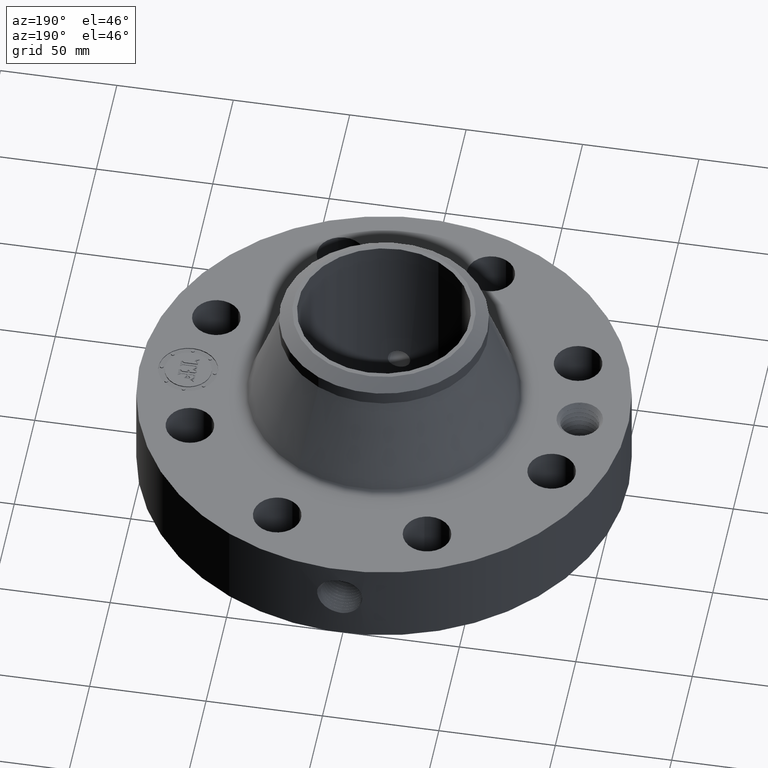
[diagram: clean part render]
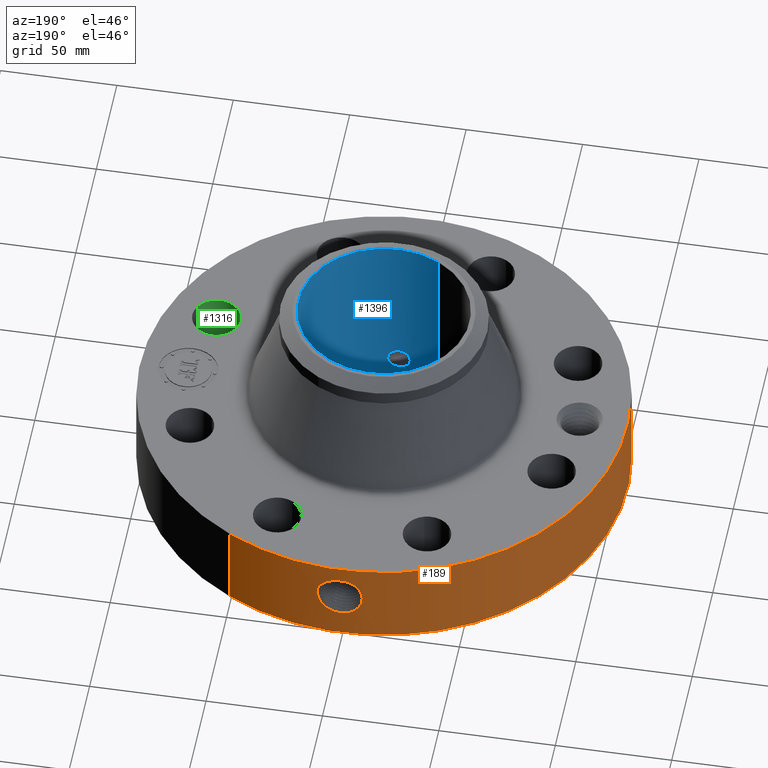
[diagram: same view with three faces highlighted in distinct colors, each labeled with its STEP entity id]
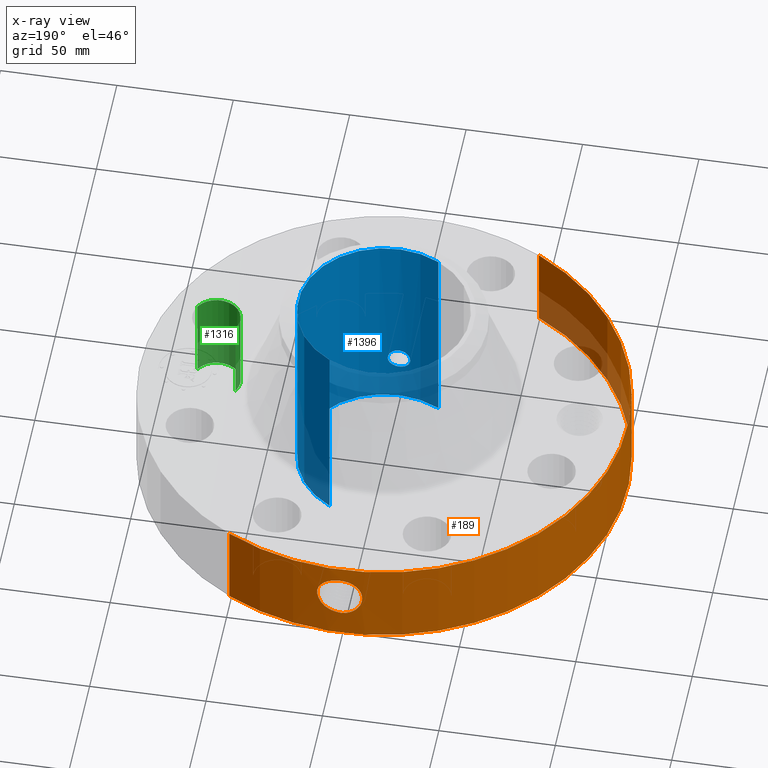
[diagram: x-ray of the same camera — body ghosted, the three highlighted faces saturated]
A machine part, auxiliary view with three faces highlighted in distinct colors.
The next image is the same camera in x-ray (body ghosted, the three faces saturated) — at least one of them is partly hidden behind the body in this view.
Their STEP definitions:

[orange] entity #189 — the highlighted cylindrical surface (partial cylindrical patch) has radius 104.775 mm, axis along (0, 0, -1).
#38=AXIS2_PLACEMENT_3D('Cylinder Axis2P3D',#35,#36,#37) ;
#42=AXIS2_PLACEMENT_3D('Circle Axis2P3D',#40,#41,$) ;
#58=AXIS2_PLACEMENT_3D('Circle Axis2P3D',#56,#57,$) ;
#35=CARTESIAN_POINT('Axis2P3D Location',(0.,0.,1.81000000001)) ;
#40=CARTESIAN_POINT('Axis2P3D Location',(0.,0.,0.0600000000002)) ;
#44=CARTESIAN_POINT('Vertex',(-1.97763034675,-3.62002806781,0.0600000000002)) ;
#46=CARTESIAN_POINT('Vertex',(1.97763034675,3.62002806781,0.0600000000002)) ;
#49=CARTESIAN_POINT('Line Origine',(-1.97763034675,-3.62002806781,0.810000000003)) ;
#53=CARTESIAN_POINT('Vertex',(-1.97763034675,-3.62002806781,1.56000000001)) ;
#56=CARTESIAN_POINT('Axis2P3D Location',(0.,0.,1.56000000001)) ;
#60=CARTESIAN_POINT('Vertex',(1.97763034675,3.62002806781,1.56000000001)) ;
#63=CARTESIAN_POINT('Line Origine',(1.97763034675,3.62002806781,0.810000000003)) ;
#75=CARTESIAN_POINT('Control Point',(-0.0708258696636,4.12439191837,1.28694445408)) ;
#76=CARTESIAN_POINT('Control Point',(-0.0477756042701,4.12478774765,1.29166264764)) ;
#77=CARTESIAN_POINT('Control Point',(-0.0242493397509,4.12499584526,1.29407066085)) ;
#78=CARTESIAN_POINT('Control Point',(-0.000717367785608,4.12499993764,1.29411849621)) ;
#79=CARTESIAN_POINT('Vertex',(-0.0707931255285,4.12439274845,1.28695147494)) ;
#81=CARTESIAN_POINT('Vertex',(-0.000717115675859,4.12499993768,1.29411850626)) ;
#85=CARTESIAN_POINT('Control Point',(-0.0707929875436,4.12439248291,1.28695080973)) ;
#86=CARTESIAN_POINT('Control Point',(-0.105534403893,4.12379616511,1.28076532583)) ;
#87=CARTESIAN_POINT('Control Point',(-0.139240729962,4.12276500955,1.26858978299)) ;
#88=CARTESIAN_POINT('Control Point',(-0.170106274733,4.12149109612,1.25141106894)) ;
#89=CARTESIAN_POINT('Vertex',(-0.170106274733,4.12149109612,1.25141106894)) ;
#93=CARTESIAN_POINT('Control Point',(-0.170106274733,4.12149109612,1.25141106894)) ;
#94=CARTESIAN_POINT('Control Point',(-0.189944744256,4.1206723031,1.24036965022)) ;
#95=CARTESIAN_POINT('Control Point',(-0.208623588127,4.11975702947,1.22728178951)) ;
#96=CARTESIAN_POINT('Control Point',(-0.225825151081,4.11881390709,1.21251850282)) ;
#97=CARTESIAN_POINT('Vertex',(-0.225825362099,4.11881409519,1.21251874593)) ;
#101=CARTESIAN_POINT('Control Point',(-0.351866700326,4.10996530707,0.975464361167)) ;
#102=CARTESIAN_POINT('Control Point',(-0.3449788673,4.11055499552,1.04398627869)) ;
#103=CARTESIAN_POINT('Control Point',(-0.320314482849,4.11268399223,1.11077407832)) ;
#104=CARTESIAN_POINT('Control Point',(-0.278761447412,4.1159117292,1.16853984639)) ;
#105=CARTESIAN_POINT('Control Point',(-0.225809776378,4.11881475003,1.21253161272)) ;
#106=CARTESIAN_POINT('Vertex',(-0.351866537775,4.10996536585,0.975466055539)) ;
#110=CARTESIAN_POINT('Control Point',(-0.0285867200519,4.12490094421,0.531014415425)) ;
#111=CARTESIAN_POINT('Control Point',(-0.0731508323955,4.12459210242,0.53676262059)) ;
#112=CARTESIAN_POINT('Control Point',(-0.116605911803,4.12368909709,0.549610401929)) ;
#113=CARTESIAN_POINT('Control Point',(-0.157313656186,4.12226228881,0.569187265495)) ;
#114=CARTESIAN_POINT('Control Point',(-0.21841203315,4.11943105988,0.610865799681)) ;
#115=CARTESIAN_POINT('Control Point',(-0.267085984175,4.11640755897,0.664664117652)) ;
#116=CARTESIAN_POINT('Control Point',(-0.28431642277,4.11523449191,0.687667885474)) ;
#117=CARTESIAN_POINT('Control Point',(-0.325710071675,4.11223072828,0.754664964785)) ;
#118=CARTESIAN_POINT('Control Point',(-0.349728178374,4.11016858959,0.82919413645)) ;
#119=CARTESIAN_POINT('Control Point',(-0.357709929823,4.10945203007,0.878220924897)) ;
#120=CARTESIAN_POINT('Control Point',(-0.358385651065,4.10940720015,0.927417505234)) ;
#121=CARTESIAN_POINT('Control Point',(-0.351866458174,4.1099653278,0.975466036918)) ;
#122=CARTESIAN_POINT('Vertex',(-0.0285867200519,4.12490094421,0.531014415425)) ;
#126=CARTESIAN_POINT('Control Point',(-0.0285867200519,4.12490094421,0.531014415425)) ;
#127=CARTESIAN_POINT('Control Point',(-0.0190504033792,4.12496703356,0.530850653595)) ;
#128=CARTESIAN_POINT('Control Point',(-0.00951371795879,4.12500000631,0.530970811253)) ;
#129=CARTESIAN_POINT('Control Point',(2.72878353804E-006,4.12500000002,0.531374667805)) ;
#130=CARTESIAN_POINT('Vertex',(2.72878353841E-006,4.12500000002,0.531374667805)) ;
#134=CARTESIAN_POINT('Control Point',(0.195057006855,4.12038563295,0.582957545943)) ;
#135=CARTESIAN_POINT('Control Point',(0.134929810888,4.12323202451,0.551663787964)) ;
#136=CARTESIAN_POINT('Control Point',(0.0678695334377,4.12499995512,0.534254782757)) ;
#137=CARTESIAN_POINT('Control Point',(2.7287835307E-006,4.12500000002,0.531374667805)) ;
#138=CARTESIAN_POINT('Vertex',(0.195057006855,4.12038563295,0.582957545943)) ;
#142=CARTESIAN_POINT('Control Point',(0.277741653318,4.11563902379,0.638820641839)) ;
#143=CARTESIAN_POINT('Control Point',(0.252440207964,4.11734647802,0.617037280361)) ;
#144=CARTESIAN_POINT('Control Point',(0.224590631531,4.11898752584,0.598328594929)) ;
#145=CARTESIAN_POINT('Control Point',(0.195057006855,4.12038563295,0.582957545943)) ;
#146=CARTESIAN_POINT('Vertex',(0.277741653318,4.11563902379,0.638820641839)) ;
#150=CARTESIAN_POINT('Control Point',(0.277741653318,4.11563902379,0.638820641839)) ;
#151=CARTESIAN_POINT('Control Point',(0.346084614525,4.11102693635,0.706500366904)) ;
#152=CARTESIAN_POINT('Control Point',(0.392503228747,4.1063284801,0.79516728573)) ;
#153=CARTESIAN_POINT('Control Point',(0.412343746852,4.10434301328,0.89184725189)) ;
#154=CARTESIAN_POINT('Control Point',(0.406546637881,4.1049171528,0.98790255717)) ;
#155=CARTESIAN_POINT('Vertex',(0.406546637881,4.1049171528,0.98790255717)) ;
#159=CARTESIAN_POINT('Control Point',(0.406546637881,4.1049171528,0.98790255717)) ;
#160=CARTESIAN_POINT('Control Point',(0.39669630803,4.10589271901,1.03992594033)) ;
#161=CARTESIAN_POINT('Control Point',(0.377107791088,4.10780290855,1.08979808973)) ;
#162=CARTESIAN_POINT('Control Point',(0.348680840751,4.11043683845,1.13488020746)) ;
#163=CARTESIAN_POINT('Control Point',(0.272595100947,4.11655133167,1.21936561238)) ;
#164=CARTESIAN_POINT('Control Point',(0.173676685768,4.1218983007,1.27163748858)) ;
#165=CARTESIAN_POINT('Control Point',(0.116496598119,4.12398624661,1.28950778802)) ;
#166=CARTESIAN_POINT('Control Point',(0.0578342871658,4.12500036264,1.29698939342)) ;
#167=CARTESIAN_POINT('Control Point',(-2.58579355212E-005,4.12499999994,1.29415298439)) ;
#168=CARTESIAN_POINT('Vertex',(-2.585793551E-005,4.12499999994,1.29415298439)) ;
#172=CARTESIAN_POINT('Control Point',(-0.00071711566355,4.12499993768,1.29411850625)) ;
#173=CARTESIAN_POINT('Control Point',(-0.000371509656304,4.12499999777,1.29413603992)) ;
#174=CARTESIAN_POINT('Control Point',(-2.58579439155E-005,4.12499999994,1.29415298439)) ;
#36=DIRECTION('Axis2P3D Direction',(0.,0.,-0.0393700787402)) ;
#37=DIRECTION('Axis2P3D XDirection',(0.0188750212049,0.0345504945626,0.)) ;
#41=DIRECTION('Axis2P3D Direction',(0.,0.,-0.0393700787402)) ;
#50=DIRECTION('Vector Direction',(0.,0.,-0.0393700787402)) ;
#57=DIRECTION('Axis2P3D Direction',(0.,0.,-0.0393700787402)) ;
#64=DIRECTION('Vector Direction',(0.,0.,-0.0393700787402)) ;
#51=VECTOR('Line Direction',#50,0.0393700787402) ;
#65=VECTOR('Line Direction',#64,0.0393700787402) ;
#69=ORIENTED_EDGE('',*,*,#48,.F.) ;
#70=ORIENTED_EDGE('',*,*,#55,.T.) ;
#71=ORIENTED_EDGE('',*,*,#62,.T.) ;
#72=ORIENTED_EDGE('',*,*,#67,.F.) ;
#177=ORIENTED_EDGE('',*,*,#83,.F.) ;
#178=ORIENTED_EDGE('',*,*,#91,.T.) ;
#179=ORIENTED_EDGE('',*,*,#99,.T.) ;
#180=ORIENTED_EDGE('',*,*,#108,.F.) ;
#181=ORIENTED_EDGE('',*,*,#124,.F.) ;
#182=ORIENTED_EDGE('',*,*,#132,.T.) ;
#183=ORIENTED_EDGE('',*,*,#140,.F.) ;
#184=ORIENTED_EDGE('',*,*,#148,.F.) ;
#185=ORIENTED_EDGE('',*,*,#157,.T.) ;
#186=ORIENTED_EDGE('',*,*,#170,.T.) ;
#187=ORIENTED_EDGE('',*,*,#175,.F.) ;
#188=FACE_BOUND('',#176,.T.) ;
#189=ADVANCED_FACE('PartBody',(#73,#188),#39,.T.) ;
#74=B_SPLINE_CURVE_WITH_KNOTS('',3,(#75,#76,#77,#78),.UNSPECIFIED.,.F.,.U.,(4,4),(3.91174753732,6.52241187189),.UNSPECIFIED.) ;
#84=B_SPLINE_CURVE_WITH_KNOTS('',3,(#85,#86,#87,#88),.UNSPECIFIED.,.F.,.U.,(4,4),(0.,3.96493926498),.UNSPECIFIED.) ;
#92=B_SPLINE_CURVE_WITH_KNOTS('',3,(#93,#94,#95,#96),.UNSPECIFIED.,.F.,.U.,(4,4),(0.,2.54841856434),.UNSPECIFIED.) ;
#100=B_SPLINE_CURVE_WITH_KNOTS('',4,(#101,#102,#103,#104,#105),.UNSPECIFIED.,.F.,.U.,(5,5),(14.8279676956,25.0223849806),.UNSPECIFIED.) ;
#109=B_SPLINE_CURVE_WITH_KNOTS('',5,(#110,#111,#112,#113,#114,#115,#116,#117,#118,#119,#120,#121),.UNSPECIFIED.,.F.,.U.,(6,3,3,6),(0.,7.80985906667,12.9724794094,22.0575185813),.UNSPECIFIED.) ;
#125=B_SPLINE_CURVE_WITH_KNOTS('',3,(#126,#127,#128,#129),.UNSPECIFIED.,.F.,.U.,(4,4),(0.,0.994579949519),.UNSPECIFIED.) ;
#133=B_SPLINE_CURVE_WITH_KNOTS('',3,(#134,#135,#136,#137),.UNSPECIFIED.,.F.,.U.,(4,4),(0.,7.0928745801),.UNSPECIFIED.) ;
#141=B_SPLINE_CURVE_WITH_KNOTS('',3,(#142,#143,#144,#145),.UNSPECIFIED.,.F.,.U.,(4,4),(0.,3.48391923021),.UNSPECIFIED.) ;
#149=B_SPLINE_CURVE_WITH_KNOTS('',4,(#150,#151,#152,#153,#154),.UNSPECIFIED.,.F.,.U.,(5,5),(0.,13.3803771451),.UNSPECIFIED.) ;
#158=B_SPLINE_CURVE_WITH_KNOTS('',5,(#159,#160,#161,#162,#163,#164,#165,#166,#167),.UNSPECIFIED.,.F.,.U.,(6,3,6),(0.,9.20582229295,20.0210803143),.UNSPECIFIED.) ;
#171=B_SPLINE_CURVE_WITH_KNOTS('',2,(#172,#173,#174),.UNSPECIFIED.,.F.,.U.,(3,3),(1.12444292039,1.15028670438),.UNSPECIFIED.) ;
#43=CIRCLE('generated circle',#42,4.12500000002) ;
#59=CIRCLE('generated circle',#58,4.12500000002) ;
#39=CYLINDRICAL_SURFACE('generated cylinder',#38,4.12500000002) ;
#48=EDGE_CURVE('',#45,#47,#43,.T.) ;
#55=EDGE_CURVE('',#45,#54,#52,.F.) ;
#62=EDGE_CURVE('',#54,#61,#59,.T.) ;
#67=EDGE_CURVE('',#47,#61,#66,.F.) ;
#83=EDGE_CURVE('',#80,#82,#74,.T.) ;
#91=EDGE_CURVE('',#80,#90,#84,.T.) ;
#99=EDGE_CURVE('',#90,#98,#92,.T.) ;
#108=EDGE_CURVE('',#107,#98,#100,.T.) ;
#124=EDGE_CURVE('',#123,#107,#109,.T.) ;
#132=EDGE_CURVE('',#123,#131,#125,.T.) ;
#140=EDGE_CURVE('',#139,#131,#133,.T.) ;
#148=EDGE_CURVE('',#147,#139,#141,.T.) ;
#157=EDGE_CURVE('',#147,#156,#149,.T.) ;
#170=EDGE_CURVE('',#156,#169,#158,.T.) ;
#175=EDGE_CURVE('',#82,#169,#171,.T.) ;
#68=EDGE_LOOP('',(#69,#70,#71,#72)) ;
#176=EDGE_LOOP('',(#177,#178,#179,#180,#181,#182,#183,#184,#185,#186,#187)) ;
#73=FACE_OUTER_BOUND('',#68,.T.) ;
#52=LINE('Line',#49,#51) ;
#66=LINE('Line',#63,#65) ;
#45=VERTEX_POINT('',#44) ;
#47=VERTEX_POINT('',#46) ;
#54=VERTEX_POINT('',#53) ;
#61=VERTEX_POINT('',#60) ;
#80=VERTEX_POINT('',#79) ;
#82=VERTEX_POINT('',#81) ;
#90=VERTEX_POINT('',#89) ;
#98=VERTEX_POINT('',#97) ;
#107=VERTEX_POINT('',#106) ;
#123=VERTEX_POINT('',#122) ;
#131=VERTEX_POINT('',#130) ;
#139=VERTEX_POINT('',#138) ;
#147=VERTEX_POINT('',#146) ;
#156=VERTEX_POINT('',#155) ;
#169=VERTEX_POINT('',#168) ;

[blue] entity #1396 — the highlighted cylindrical surface (partial cylindrical patch) has radius 36.83 mm, axis along (0, 0, -1).
#242=AXIS2_PLACEMENT_3D('Circle Axis2P3D',#240,#241,$) ;
#1327=AXIS2_PLACEMENT_3D('Cylinder Axis2P3D',#1324,#1325,#1326) ;
#1331=AXIS2_PLACEMENT_3D('Circle Axis2P3D',#1329,#1330,$) ;
#240=CARTESIAN_POINT('Axis2P3D Location',(0.,0.,0.0600000000002)) ;
#244=CARTESIAN_POINT('Vertex',(0.695167030979,1.27249471475,0.0600000000002)) ;
#246=CARTESIAN_POINT('Vertex',(-0.695167030979,-1.27249471475,0.0600000000002)) ;
#1324=CARTESIAN_POINT('Axis2P3D Location',(0.,0.,1.81000000001)) ;
#1329=CARTESIAN_POINT('Axis2P3D Location',(0.,0.,3.56000000001)) ;
#1333=CARTESIAN_POINT('Vertex',(0.695167030979,1.27249471475,3.56000000001)) ;
#1335=CARTESIAN_POINT('Vertex',(-0.695167030979,-1.27249471475,3.56000000001)) ;
#1338=CARTESIAN_POINT('Line Origine',(0.695167030979,1.27249471475,1.81000000001)) ;
#1343=CARTESIAN_POINT('Line Origine',(-0.695167030979,-1.27249471475,1.81000000001)) ;
#1355=CARTESIAN_POINT('Control Point',(0.16674068676,-1.44038104104,0.848909147669)) ;
#1356=CARTESIAN_POINT('Control Point',(0.155853923541,-1.44164130921,0.828981061268)) ;
#1357=CARTESIAN_POINT('Control Point',(0.141996407057,-1.44314124179,0.810691089735)) ;
#1358=CARTESIAN_POINT('Control Point',(0.125490549829,-1.44473002661,0.794617610143)) ;
#1359=CARTESIAN_POINT('Control Point',(0.0789323896355,-1.4484002397,0.761252320448)) ;
#1360=CARTESIAN_POINT('Control Point',(0.0226598513544,-1.45044587283,0.74666167583)) ;
#1361=CARTESIAN_POINT('Control Point',(-0.0125761969569,-1.45058029167,0.745742350375)) ;
#1362=CARTESIAN_POINT('Control Point',(-0.086643329833,-1.44840984984,0.760889591314)) ;
#1363=CARTESIAN_POINT('Control Point',(-0.145946985559,-1.44311502434,0.808592079147)) ;
#1364=CARTESIAN_POINT('Control Point',(-0.170365601398,-1.44006401457,0.842255376223)) ;
#1365=CARTESIAN_POINT('Control Point',(-0.193202944242,-1.43708588473,0.902919527218)) ;
#1366=CARTESIAN_POINT('Control Point',(-0.190291476897,-1.43745485961,0.966316896108)) ;
#1367=CARTESIAN_POINT('Control Point',(-0.185696721077,-1.43808039549,0.989178083605)) ;
#1368=CARTESIAN_POINT('Control Point',(-0.177733048215,-1.43910854866,1.01096946966)) ;
#1369=CARTESIAN_POINT('Control Point',(-0.16674068676,-1.44038104104,1.03109085234)) ;
#1370=CARTESIAN_POINT('Vertex',(0.16674068676,-1.44038104104,0.848909147669)) ;
#1372=CARTESIAN_POINT('Vertex',(-0.16674068676,-1.44038104104,1.03109085234)) ;
#1376=CARTESIAN_POINT('Control Point',(-0.16674068676,-1.44038104104,1.03109085234)) ;
#1377=CARTESIAN_POINT('Control Point',(-0.155853923544,-1.44164130921,1.05101893873)) ;
#1378=CARTESIAN_POINT('Control Point',(-0.141996407063,-1.44314124179,1.06930891026)) ;
#1379=CARTESIAN_POINT('Control Point',(-0.125490549819,-1.44473002661,1.08538238987)) ;
#1380=CARTESIAN_POINT('Control Point',(-0.0789323896284,-1.4484002397,1.11874767956)) ;
#1381=CARTESIAN_POINT('Control Point',(-0.022659851354,-1.45044587283,1.13333832418)) ;
#1382=CARTESIAN_POINT('Control Point',(0.0125761969619,-1.45058029167,1.13425764963)) ;
#1383=CARTESIAN_POINT('Control Point',(0.0866433298336,-1.44840984984,1.11911040869)) ;
#1384=CARTESIAN_POINT('Control Point',(0.145946985556,-1.44311502434,1.07140792086)) ;
#1385=CARTESIAN_POINT('Control Point',(0.170365601401,-1.44006401457,1.03774462378)) ;
#1386=CARTESIAN_POINT('Control Point',(0.193202944243,-1.43708588473,0.977080472784)) ;
#1387=CARTESIAN_POINT('Control Point',(0.190291476897,-1.43745485961,0.913683103898)) ;
#1388=CARTESIAN_POINT('Control Point',(0.185696721077,-1.43808039549,0.890821916402)) ;
#1389=CARTESIAN_POINT('Control Point',(0.177733048215,-1.43910854866,0.869030530344)) ;
#1390=CARTESIAN_POINT('Control Point',(0.16674068676,-1.44038104104,0.848909147669)) ;
#241=DIRECTION('Axis2P3D Direction',(0.,0.,-0.0393700787402)) ;
#1325=DIRECTION('Axis2P3D Direction',(0.,0.,-0.0393700787402)) ;
#1326=DIRECTION('Axis2P3D XDirection',(-0.0188750212049,-0.0345504945626,0.)) ;
#1330=DIRECTION('Axis2P3D Direction',(0.,0.,-0.0393700787402)) ;
#1339=DIRECTION('Vector Direction',(0.,0.,-0.0393700787402)) ;
#1344=DIRECTION('Vector Direction',(0.,0.,-0.0393700787402)) ;
#1340=VECTOR('Line Direction',#1339,0.0393700787402) ;
#1345=VECTOR('Line Direction',#1344,0.0393700787402) ;
#1349=ORIENTED_EDGE('',*,*,#1337,.F.) ;
#1350=ORIENTED_EDGE('',*,*,#1342,.T.) ;
#1351=ORIENTED_EDGE('',*,*,#248,.T.) ;
#1352=ORIENTED_EDGE('',*,*,#1347,.F.) ;
#1393=ORIENTED_EDGE('',*,*,#1374,.F.) ;
#1394=ORIENTED_EDGE('',*,*,#1391,.F.) ;
#1395=FACE_BOUND('',#1392,.T.) ;
#1396=ADVANCED_FACE('PartBody',(#1353,#1395),#1328,.F.) ;
#1354=B_SPLINE_CURVE_WITH_KNOTS('',5,(#1355,#1356,#1357,#1358,#1359,#1360,#1361,#1362,#1363,#1364,#1365,#1366,#1367,#1368,#1369),.UNSPECIFIED.,.F.,.U.,(6,3,3,3,6),(0.,4.08473745489,10.1952038082,17.3395947655,21.4639529106),.UNSPECIFIED.) ;
#1375=B_SPLINE_CURVE_WITH_KNOTS('',5,(#1376,#1377,#1378,#1379,#1380,#1381,#1382,#1383,#1384,#1385,#1386,#1387,#1388,#1389,#1390),.UNSPECIFIED.,.F.,.U.,(6,3,3,3,6),(0.,4.08473745396,10.1952038071,17.3395947638,21.4639529088),.UNSPECIFIED.) ;
#243=CIRCLE('generated circle',#242,1.45000000001) ;
#1332=CIRCLE('generated circle',#1331,1.45000000001) ;
#1328=CYLINDRICAL_SURFACE('generated cylinder',#1327,1.45000000001) ;
#248=EDGE_CURVE('',#245,#247,#243,.T.) ;
#1337=EDGE_CURVE('',#1334,#1336,#1332,.T.) ;
#1342=EDGE_CURVE('',#1334,#245,#1341,.T.) ;
#1347=EDGE_CURVE('',#1336,#247,#1346,.T.) ;
#1374=EDGE_CURVE('',#1371,#1373,#1354,.T.) ;
#1391=EDGE_CURVE('',#1373,#1371,#1375,.T.) ;
#1348=EDGE_LOOP('',(#1349,#1350,#1351,#1352)) ;
#1392=EDGE_LOOP('',(#1393,#1394)) ;
#1353=FACE_OUTER_BOUND('',#1348,.T.) ;
#1341=LINE('Line',#1338,#1340) ;
#1346=LINE('Line',#1343,#1345) ;
#245=VERTEX_POINT('',#244) ;
#247=VERTEX_POINT('',#246) ;
#1334=VERTEX_POINT('',#1333) ;
#1336=VERTEX_POINT('',#1335) ;
#1371=VERTEX_POINT('',#1370) ;
#1373=VERTEX_POINT('',#1372) ;

[green] entity #1316 — the highlighted cylindrical surface (edge-blend (fillet) strip) has radius 10.287 mm, axis along (0, -0, -1).
#224=AXIS2_PLACEMENT_3D('Circle Axis2P3D',#222,#223,$) ;
#550=AXIS2_PLACEMENT_3D('Circle Axis2P3D',#548,#549,$) ;
#1298=AXIS2_PLACEMENT_3D('Cylinder Axis2P3D',#1295,#1296,#1297) ;
#222=CARTESIAN_POINT('Axis2P3D Location',(3.05804125262,-1.26668216113,0.0600000000002)) ;
#226=CARTESIAN_POINT('Vertex',(3.41346219019,-1.46084950427,0.0600000000002)) ;
#228=CARTESIAN_POINT('Vertex',(2.70262031506,-1.072514818,0.0600000000002)) ;
#543=CARTESIAN_POINT('Vertex',(2.70262031506,-1.072514818,1.56000000001)) ;
#545=CARTESIAN_POINT('Vertex',(3.41346219019,-1.46084950427,1.56000000001)) ;
#548=CARTESIAN_POINT('Axis2P3D Location',(3.05804125262,-1.26668216113,1.56000000001)) ;
#1295=CARTESIAN_POINT('Axis2P3D Location',(3.05804125262,-1.26668216113,1.55606299213)) ;
#1300=CARTESIAN_POINT('Line Origine',(3.41346219019,-1.46084950427,0.810000000003)) ;
#1305=CARTESIAN_POINT('Line Origine',(2.70262031506,-1.072514818,0.810000000003)) ;
#223=DIRECTION('Axis2P3D Direction',(0.,0.,-0.0393700787402)) ;
#549=DIRECTION('Axis2P3D Direction',(0.,0.,-0.0393700787402)) ;
#1296=DIRECTION('Axis2P3D Direction',(0.,-0.,-0.0393700787402)) ;
#1297=DIRECTION('Axis2P3D XDirection',(-0.0345504945626,0.0188750212049,0.)) ;
#1301=DIRECTION('Vector Direction',(0.,0.,-0.0393700787402)) ;
#1306=DIRECTION('Vector Direction',(0.,0.,-0.0393700787402)) ;
#1302=VECTOR('Line Direction',#1301,0.0393700787402) ;
#1307=VECTOR('Line Direction',#1306,0.0393700787402) ;
#1311=ORIENTED_EDGE('',*,*,#1304,.F.) ;
#1312=ORIENTED_EDGE('',*,*,#230,.T.) ;
#1313=ORIENTED_EDGE('',*,*,#1309,.T.) ;
#1314=ORIENTED_EDGE('',*,*,#552,.F.) ;
#1316=ADVANCED_FACE('PartBody',(#1315),#1299,.F.) ;
#225=CIRCLE('generated circle',#224,0.405000000002) ;
#551=CIRCLE('generated circle',#550,0.405000000002) ;
#1299=CYLINDRICAL_SURFACE('generated cylinder',#1298,0.405000000002) ;
#230=EDGE_CURVE('',#227,#229,#225,.T.) ;
#552=EDGE_CURVE('',#546,#544,#551,.T.) ;
#1304=EDGE_CURVE('',#227,#546,#1303,.F.) ;
#1309=EDGE_CURVE('',#229,#544,#1308,.F.) ;
#1310=EDGE_LOOP('',(#1311,#1312,#1313,#1314)) ;
#1315=FACE_OUTER_BOUND('',#1310,.T.) ;
#1303=LINE('Line',#1300,#1302) ;
#1308=LINE('Line',#1305,#1307) ;
#227=VERTEX_POINT('',#226) ;
#229=VERTEX_POINT('',#228) ;
#544=VERTEX_POINT('',#543) ;
#546=VERTEX_POINT('',#545) ;